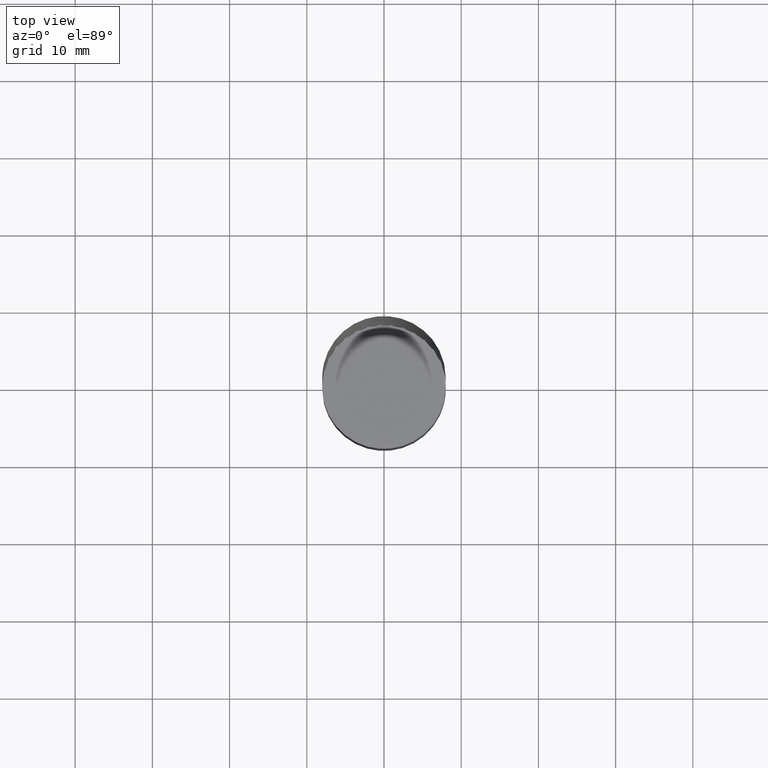
[diagram: clean part render]
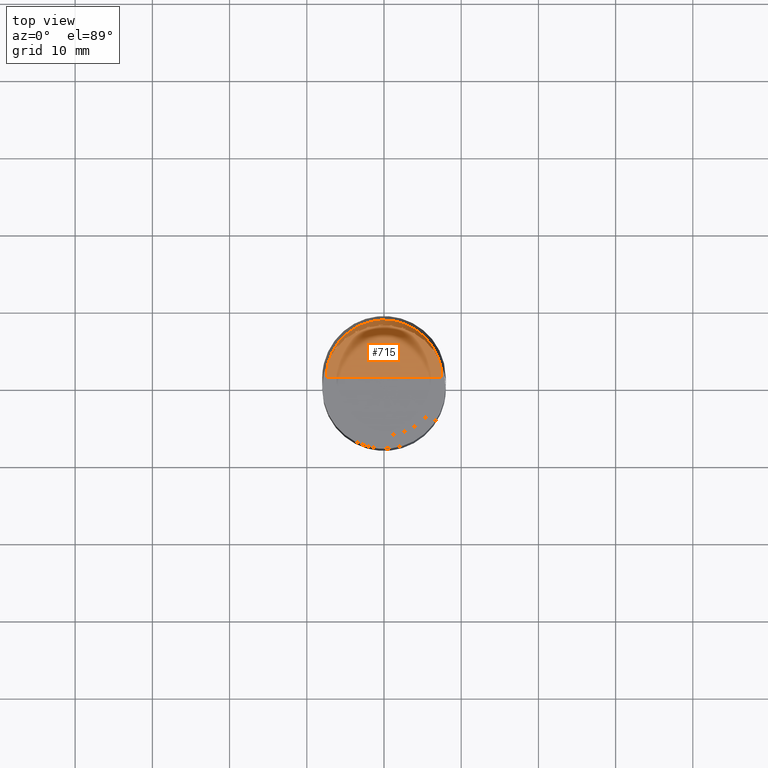
[diagram: same view with one face highlighted and labeled with its STEP entity id]
A machine part, top view. The second image highlights one B-rep face of the part: STEP entity #715.
In plain terms, the highlighted face is a freeform B-spline surface patch.
Its self-contained STEP definition (entity closure, byte-faithful):
#496=CARTESIAN_POINT('',(7.5,0.0,64.0));
#497=CARTESIAN_POINT('',(7.5,7.5,64.0));
#498=CARTESIAN_POINT('',(0.0,7.5,64.0));
#499=CARTESIAN_POINT('',(-7.5,7.5,64.0));
#500=CARTESIAN_POINT('',(-7.5,0.0,64.0));
#501=CARTESIAN_POINT('',(0.0,0.0,64.0));
#700=(
BOUNDED_SURFACE()
B_SPLINE_SURFACE(1,2,(
(#496,#497,#498,#499,#500),
(#501,#501,#501,#501,#501)
), .UNSPECIFIED.,.F.,.F.,.F.)
B_SPLINE_SURFACE_WITH_KNOTS((2,2),(3,2,3),(
0.0,1.0),(
0.0,0.5,1.0), .UNSPECIFIED.)
GEOMETRIC_REPRESENTATION_ITEM()
RATIONAL_B_SPLINE_SURFACE(((1.0,0.707106781187,1.0,0.707106781187,1.0),
(1.0,0.707106781187,1.0,0.707106781187,1.0)
))
REPRESENTATION_ITEM('')
SURFACE()
);
#701=(
BOUNDED_CURVE()
B_SPLINE_CURVE(2,(#500,#499,#498,#497,#496),.UNSPECIFIED.,.F.,.F.)
B_SPLINE_CURVE_WITH_KNOTS((3,2,3),
(0.0,0.5,1.0),.UNSPECIFIED.)
CURVE()
GEOMETRIC_REPRESENTATION_ITEM()
RATIONAL_B_SPLINE_CURVE((1.0,0.707106781187,1.0,0.707106781187,1.0))
REPRESENTATION_ITEM('')
);
#702=(
BOUNDED_CURVE()
B_SPLINE_CURVE(1,(#496,#501),.UNSPECIFIED.,.F.,.F.)
B_SPLINE_CURVE_WITH_KNOTS((2,2),
(0.0,1.0),.UNSPECIFIED.)
CURVE()
GEOMETRIC_REPRESENTATION_ITEM()
RATIONAL_B_SPLINE_CURVE((1.0,1.0))
REPRESENTATION_ITEM('')
);
#703=(
BOUNDED_CURVE()
B_SPLINE_CURVE(1,(#501,#500),.UNSPECIFIED.,.F.,.F.)
B_SPLINE_CURVE_WITH_KNOTS((2,2),
(0.0,1.0),.UNSPECIFIED.)
CURVE()
GEOMETRIC_REPRESENTATION_ITEM()
RATIONAL_B_SPLINE_CURVE((1.0,1.0))
REPRESENTATION_ITEM('')
);
#704=VERTEX_POINT('',#496);
#705=VERTEX_POINT('',#500);
#706=VERTEX_POINT('',#501);
#707=EDGE_CURVE('',#705,#704,#701,.T.);
#708=EDGE_CURVE('',#704,#706,#702,.T.);
#709=EDGE_CURVE('',#706,#705,#703,.T.);
#710=ORIENTED_EDGE('',*,*,#707,.T.);
#711=ORIENTED_EDGE('',*,*,#708,.T.);
#712=ORIENTED_EDGE('',*,*,#709,.T.);
#713=EDGE_LOOP('',(#710,#711,#712));
#714=FACE_OUTER_BOUND('',#713,.T.);
#715=ADVANCED_FACE('',(#714),#700,.T.);